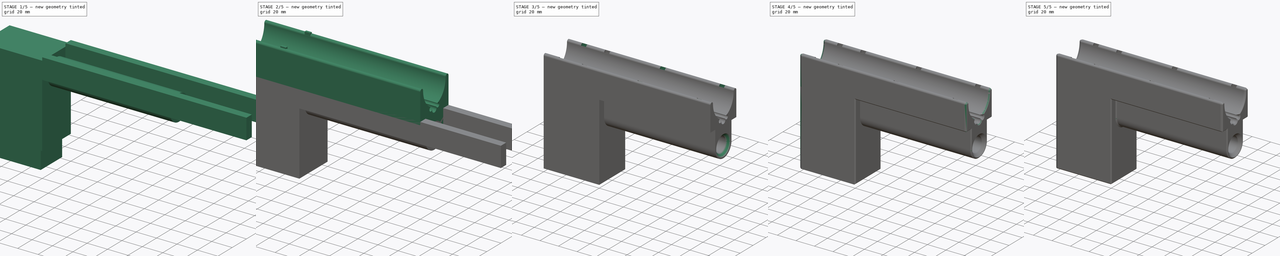
[diagram: build sequence overview — one tinted view per stage of 5, left to right]
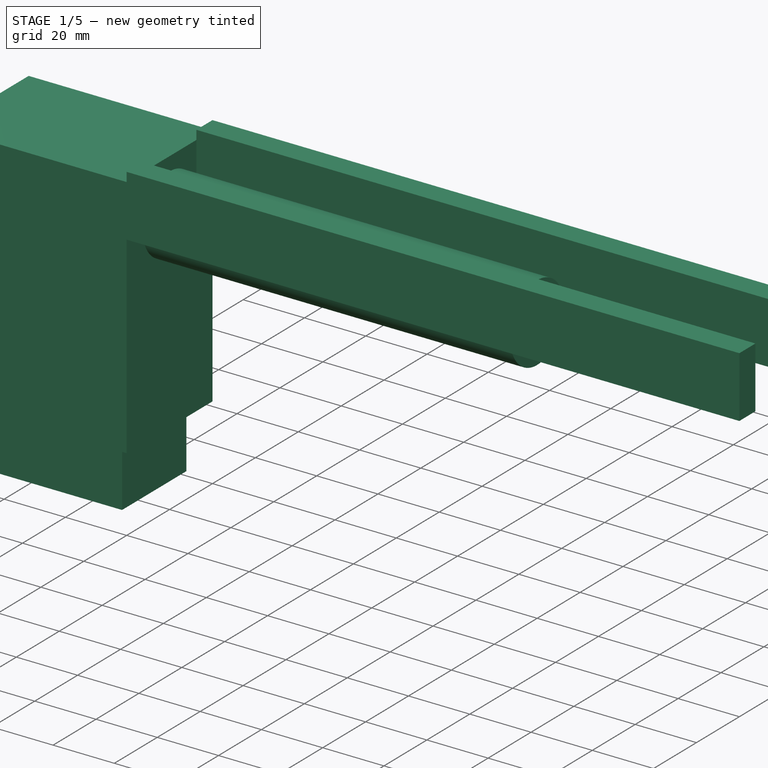
[diagram: stage 1 of 5 — iso view after this stage's code; geometry added in this stage tinted green]
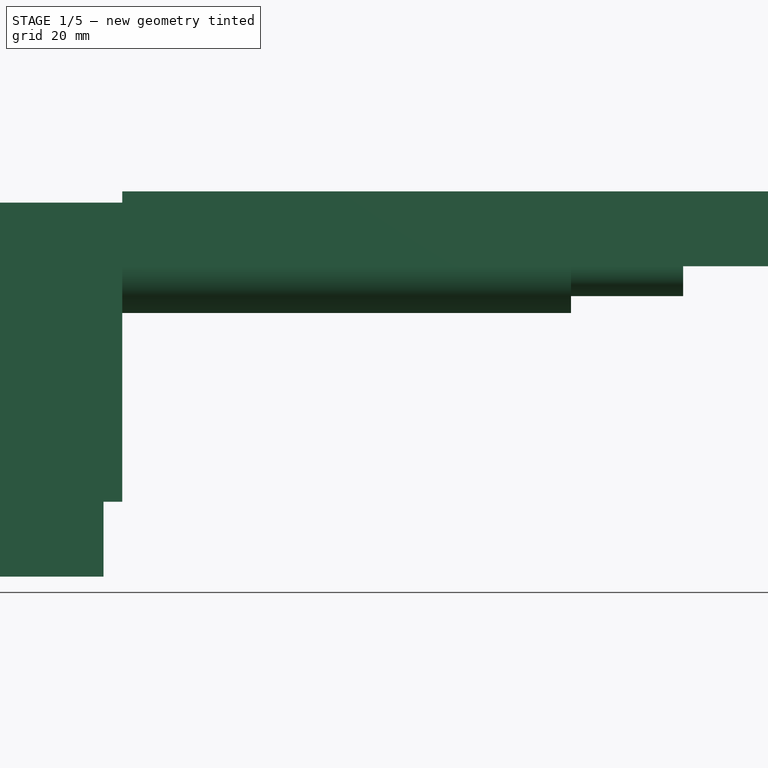
[diagram: stage 1 of 5 — front view after this stage's code; geometry added in this stage tinted green]
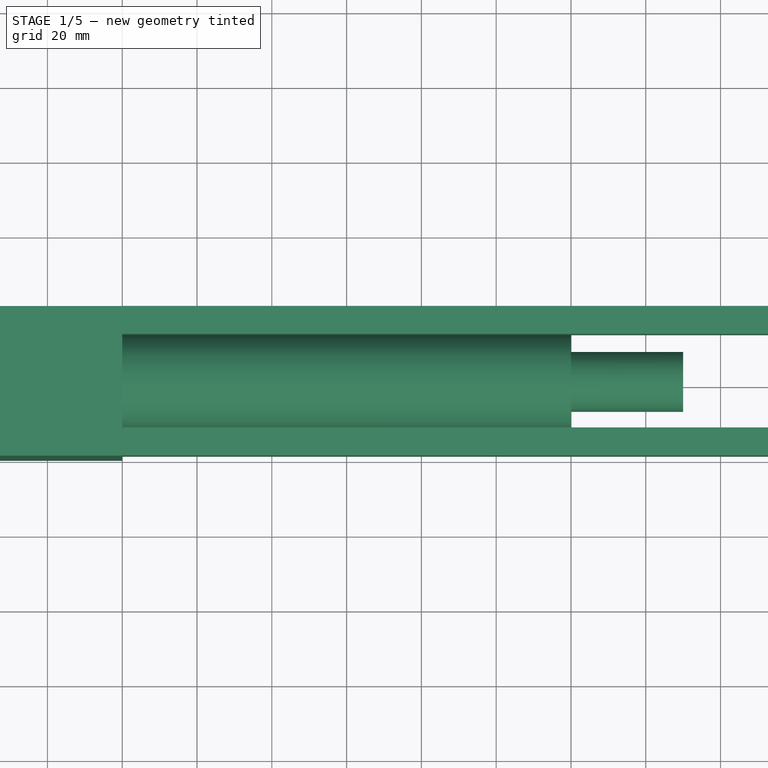
[diagram: stage 1 of 5 — top view after this stage's code; geometry added in this stage tinted green]
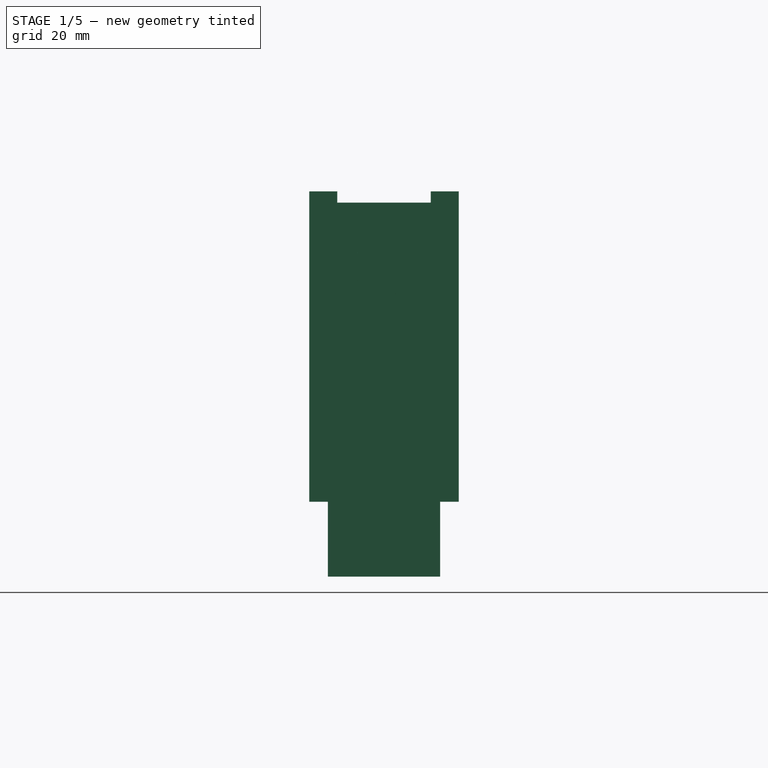
[diagram: stage 1 of 5 — right view after this stage's code; geometry added in this stage tinted green]
FCSTD DOCUMENT  (FreeCAD 0.18R16093 (Git))
Label: 20190511_bikelockholder_B9
License: All rights reserved
LicenseURL: http://en.wikipedia.org/wiki/All_rights_reserved
objects: PartDesign::Chamfer×14, Part::Extrusion×7, Sketcher::SketchObject×4, Part::Cut×3, Part::Box×3, Part::MultiFuse×3, Part::Cylinder×2, PartDesign::Body×2, Spreadsheet::Sheet×1, PartDesign::FeatureBase×1
note: 39 computed .brp shape members not serialized (recipe doc carries the construction recipe); baked Part::Feature solids carry a one-line shape summary decoded from their .brp

FEATURE [Part::Box] Box  label="Cube"
  AttacherType = Attacher::AttachEngine3D
  Height = 80
  Length = 60
  Placement = pos=(0,-20,-80) rot=(0,0,1;0rad)
  Width = 40
  expr: Placement.Base.z = -params.sh2
  expr: Width = params.bpw
  expr: Placement.Base.y = -params.bpw / 2
  expr: Height = params.sh2
  expr: Placement.Base.x = 0
FEATURE [Part::Cylinder] Cylinder
  Angle = 360
  AttacherType = Attacher::AttachEngine3D
  Height = 180
  Placement = pos=(0,0,-17) rot=(0,1,0;1.5708rad)
  Radius = 12.5
  expr: Radius = 25 / 2
FEATURE [Part::Extrusion] Extrude006
  Base = -> Sketch003
  Dir = (0,-1,-2e-16)
  DirMode = 2
  FaceMakerClass = Part::FaceMakerBullseye
  LengthFwd = 30
  LengthRev = 0
  Solid = true
  Symmetric = true
FEATURE [Part::Cylinder] Cylinder001
  Angle = 360
  AttacherType = Attacher::AttachEngine3D
  Height = 200
  Placement = pos=(10,0,-17) rot=(0,1,0;1.5708rad)
  Radius = 8
FEATURE [Part::MultiFuse] Fusion002
  Shapes = -> [Extrude006,Cylinder001]
FEATURE [Part::Box] Box001  label="Cube001"
  AttacherType = Attacher::AttachEngine3D
  Height = 20
  Length = 200
  Placement = pos=(60,12.5,-17) rot=(0,0,1;0rad)
  Width = 7.5
  expr: Width = (40 - 25) / 2
FEATURE [Part::Box] Box002  label="Cube002"
  AttacherType = Attacher::AttachEngine3D
  Height = 20
  Length = 200
  Placement = pos=(60,-20,-17) rot=(0,0,1;0rad)
  Width = 7.5
  expr: Width = (40 - 25) / 2
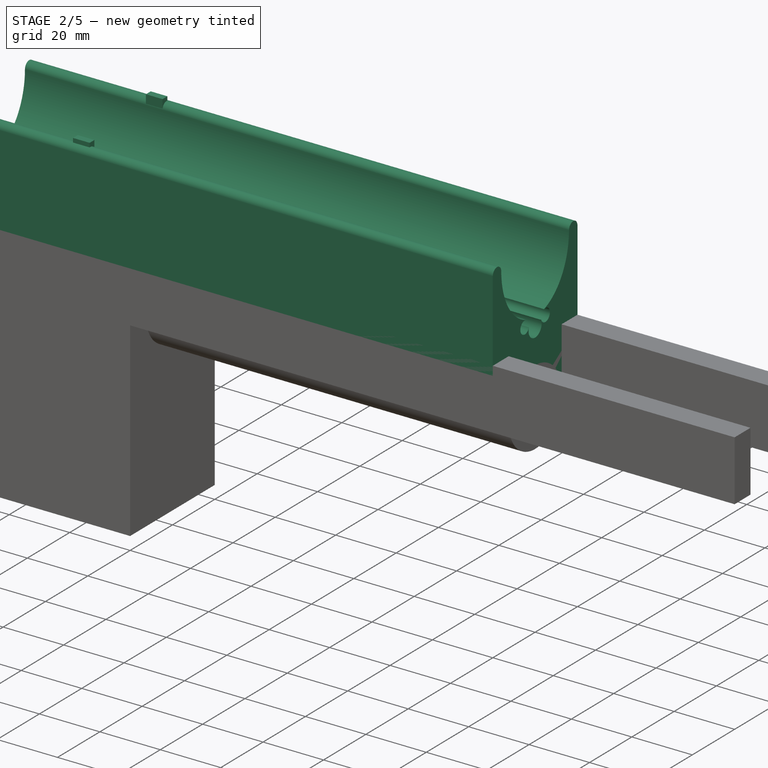
[diagram: stage 2 of 5 — iso view after this stage's code; geometry added in this stage tinted green]
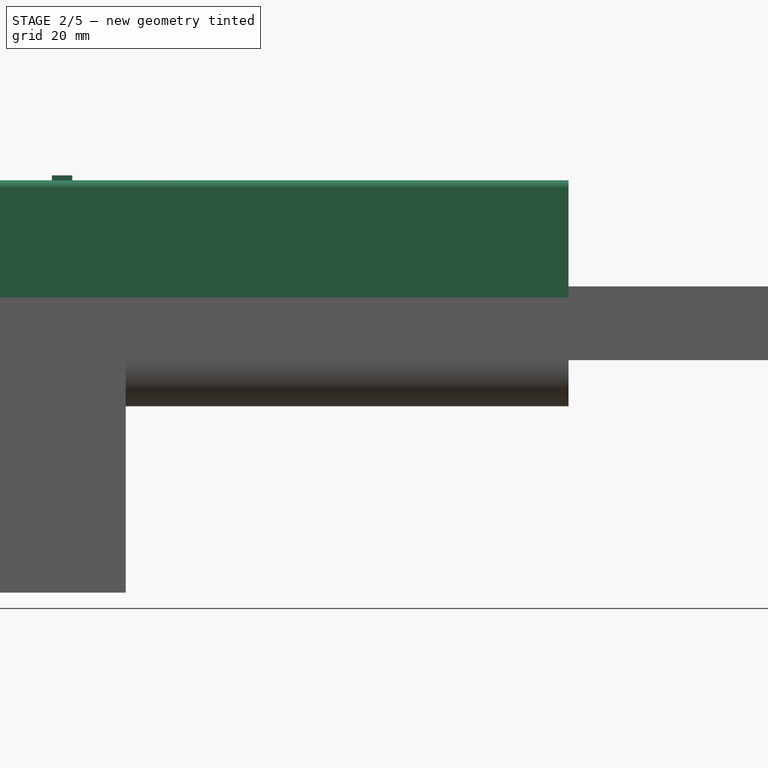
[diagram: stage 2 of 5 — front view after this stage's code; geometry added in this stage tinted green]
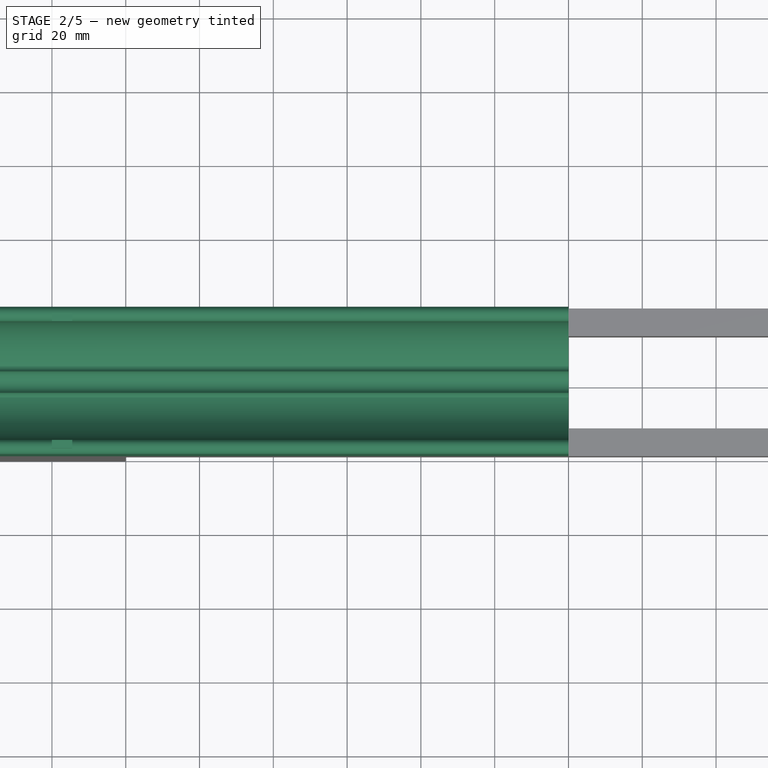
[diagram: stage 2 of 5 — top view after this stage's code; geometry added in this stage tinted green]
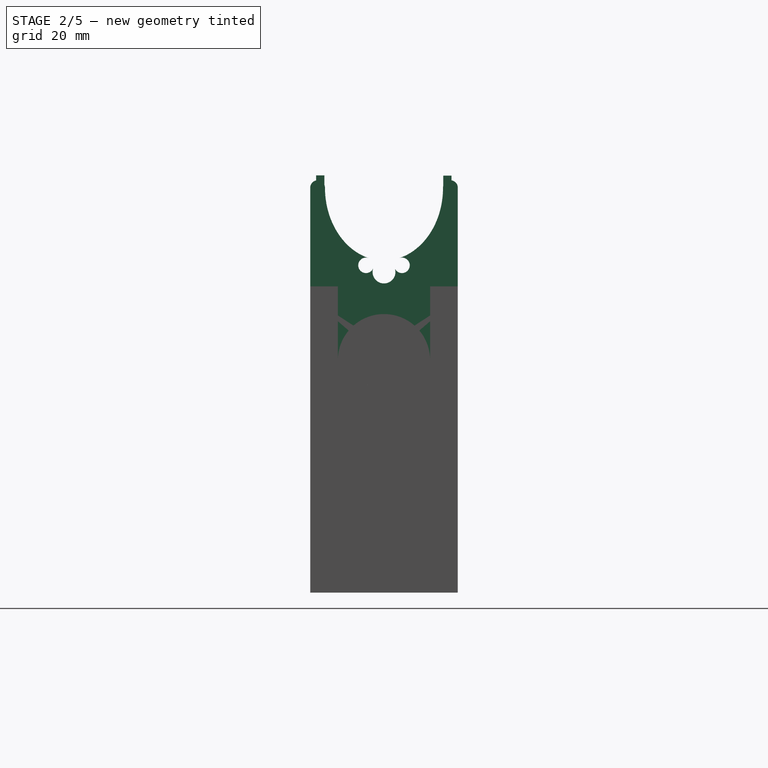
[diagram: stage 2 of 5 — right view after this stage's code; geometry added in this stage tinted green]
FEATURE [Sketcher::SketchObject] Sketch  label="BPprofile"
  MapMode = 5
  Placement = pos=(0,0,0) rot=(0.57735,0.57735,0.57735;2.0944rad)
  Support = -> [YZ_Plane]
  expr: Constraints[22] = params.bph
  expr: Constraints[21] = params.bpw
  expr: Constraints[5] = params.sh
  expr: Constraints[16] = params.hhd
  expr: Constraints[17] = params.hvd
  sketch-geometry (13):
    g0: LineSegment StartX=-20 StartY=0 StartZ=0 EndX=-20 EndY=-17 EndZ=0
    g1: LineSegment StartX=-20 StartY=-17 StartZ=0 EndX=20 EndY=-17 EndZ=0
    g2: LineSegment StartX=20 StartY=-17 StartZ=0 EndX=20 EndY=0 EndZ=0
    g3: ArcOfEllipse CenterX=0 CenterY=29.75 CenterZ=0 NormalX=0 NormalY=0 NormalZ=1 MajorRadius=19.75 MinorRadius=16 AngleXU=-1.5708 StartAngle=4.71239 EndAngle=7.85398
    g4: LineSegment [constr] StartX=0 StartY=10 StartZ=0 EndX=0 EndY=49.5 EndZ=0
    g5: LineSegment [constr] StartX=16 StartY=29.75 StartZ=0 EndX=-16 EndY=29.75 EndZ=0
    g6: GeomPoint X=1.3e-15 Y=18.1715 Z=0
    g7: GeomPoint X=0 Y=41.3285 Z=0
    g8: LineSegment [constr] StartX=-16 StartY=29.75 StartZ=0 EndX=16 EndY=29.75 EndZ=0
    g9: ArcOfCircle CenterX=-18 CenterY=29.75 CenterZ=0 NormalX=0 NormalY=0 NormalZ=1 AngleXU=0 Radius=2 StartAngle=0 EndAngle=3.14159
    g10: ArcOfCircle CenterX=18 CenterY=29.75 CenterZ=0 NormalX=0 NormalY=0 NormalZ=1 AngleXU=0 Radius=2 StartAngle=0 EndAngle=3.14159
    g11: LineSegment StartX=-20 StartY=29.75 StartZ=0 EndX=-20 EndY=0 EndZ=0
    g12: LineSegment StartX=20 StartY=0 StartZ=0 EndX=20 EndY=29.75 EndZ=0
  constraints (32):
    c: Vertical(g0)
    c: Coincident(g0,g1)
    c: Horizontal(g1)
    c: Coincident(g1,g2)
    c: Vertical(g2)
    c: Distance(g2) = 17
    c: InternalAlignment(g4-g7 -> g3) x4
    c: PointOnObject(g3,g-2)
    c: Vertical(g4)
    c: Coincident(g8,g3)
    c: Coincident(g8,g3)
    c: Horizontal(g8)
    c: Coincident(g3,g5)
    c: Distance(g5) = 32
    c: Distance(g4) = 39.5
    c: Tangent(g3,g3)
    c: PointOnObject(g2,g-1)
    c: Symmetric(g2,g0,g-2)
    c: Distance(g1) = 40
    c: DistanceY(g-1,g4) = 10
    c: Coincident(g9,g3)
    c: Coincident(g10,g3)
    c: Coincident(g11,g9)
    c: Coincident(g11,g0)
    c: Vertical(g11)
    c: Coincident(g12,g2)
    c: Coincident(g12,g10)
    c: Vertical(g12)
    c: Horizontal(g9,g9)
    c: Horizontal(g9,g3)
    c: Horizontal(g3,g10)
    c: Horizontal(g10,g10)
FEATURE [Spreadsheet::Sheet] Spreadsheet  label="params"
  cells = C3=HolmHorizontalDiameter; D3(hhd)=32; E3=mm; C4=HolmVerticalDiameter; D4(hvd)=39.5; E4=mm; C5=BasePlateWidth; D5(bpw)=40; E5=mm; C6=BasePlateHeight; D6(bph)=10; E6=mm; C7=ShaftHeight; D7(sh)=17; E7=mm; C8=ShaftHeight2; D8(sh2)=80; E8=mm; C9=DiameterLargeCable; D9(dlc)=6.2; E9=mm; C10=DiamterSmallCable; D10(dsc)=4.2; E10=mm
FEATURE [Sketcher::SketchObject] Sketch001  label="BPCableCutout"
  MapMode = 5
  Placement = pos=(0,0,0) rot=(0.57735,0.57735,0.57735;2.0944rad)
  Support = -> [YZ_Plane]
  expr: Constraints[17] = params.dlc / 2
  expr: Constraints[13] = params.dlc / 2 + params.dsc / 2
  expr: Constraints[12] = params.dlc / 2 + params.dsc / 2
  expr: Constraints[11] = params.dsc / 2
  expr: Constraints[10] = params.dlc / 2
  expr: Constraints[9] = params.dsc / 2
  expr: Constraints[8] = params.hvd / 2 + params.bph
  expr: Constraints[5] = params.hvd
  expr: Constraints[4] = params.hhd
  sketch-geometry (11):
    g0: Ellipse [constr] CenterX=0 CenterY=29.75 CenterZ=0 NormalX=0 NormalY=0 NormalZ=1 MajorRadius=19.75 MinorRadius=16 AngleXU=-1.5708
    g1: LineSegment [constr] StartX=0 StartY=10 StartZ=0 EndX=0 EndY=49.5 EndZ=0
    g2: LineSegment [constr] StartX=16 StartY=29.75 StartZ=0 EndX=-16 EndY=29.75 EndZ=0
    g3: GeomPoint X=0 Y=18.1715 Z=0
    g4: GeomPoint X=0 Y=41.3285 Z=0
    g5: ArcOfCircle CenterX=0 CenterY=6.9 CenterZ=0 NormalX=0 NormalY=0 NormalZ=1 AngleXU=0 Radius=3.1 StartAngle=2.78718 EndAngle=6.6376
    g6: ArcOfCircle CenterX=-4.87681 CenterY=8.70463 CenterZ=0 NormalX=0 NormalY=0 NormalZ=1 AngleXU=0 Radius=2.1 StartAngle=1.24627 EndAngle=5.92877
    g7: ArcOfCircle CenterX=4.87681 CenterY=8.70463 CenterZ=0 NormalX=0 NormalY=0 NormalZ=1 AngleXU=0 Radius=2.1 StartAngle=3.49602 EndAngle=8.17851
    g8: GeomPoint X=4.20721 Y=10.695 Z=0
    g9: GeomPoint X=-4.20721 Y=10.695 Z=0
    g10: LineSegment StartX=-4.20721 StartY=10.695 StartZ=0 EndX=4.20721 EndY=10.695 EndZ=0
  constraints (25):
    c: InternalAlignment(g1-g4 -> g0) x4
    c: Distance(g2) = 32
    c: Distance(g1) = 39.5
    c: PointOnObject(g0,g-2)
    c: Vertical(g1)
    c: DistanceY(g-1,g0) = 29.75
    c: Radius(g7) = 2.1
    c: Radius(g5) = 3.1
    c: Radius(g6) = 2.1
    c: Distance(g7,g5) = 5.2
    c: Distance(g6,g5) = 5.2
    c: Coincident(g6,g5)
    c: Coincident(g5,g7)
    c: PointOnObject(g5,g-2)
    c: DistanceY(g5,g1) = 3.1
    c: PointOnObject(g6,g0)
    c: PointOnObject(g7,g0)
    c: PointOnObject(g8,g0)
    c: PointOnObject(g8,g7)
    c: Tangent(g0,g7,g8) = 1.5708
    c: PointOnObject(g9,g0)
    c: PointOnObject(g9,g6)
    c: Tangent(g0,g6,g9) = 1.5708
    c: Coincident(g10,g6)
    c: Coincident(g10,g7)
FEATURE [Part::Extrusion] Extrude
  Base = -> Sketch
  Dir = (1,-2e-16,3e-16)
  DirMode = 2
  FaceMakerClass = Part::FaceMakerBullseye
  LengthFwd = 180
  LengthRev = 0
  Solid = true
  Symmetric = false
FEATURE [Part::Extrusion] Extrude001
  Base = -> Sketch001
  Dir = (1,-2e-16,3e-16)
  DirMode = 2
  FaceMakerClass = Part::FaceMakerBullseye
  LengthFwd = 180
  LengthRev = 0
  Solid = true
  Symmetric = false
FEATURE [Part::Cut] Cut
  Base = -> Extrude
  Tool = -> Extrude001
FEATURE [Part::Extrusion] Extrude005  label="straphole004"
  Base = -> Sketch002
  Dir = (1,-2e-16,3e-16)
  DirMode = 2
  FaceMakerClass = Part::FaceMakerBullseye
  LengthFwd = 5.5
  LengthRev = 0
  Placement = pos=(40,0,0) rot=(0,0,1;0rad)
  Solid = true
  Symmetric = false
FEATURE [Sketcher::SketchObject] Sketch003
  MapMode = 5
  Placement = pos=(0,0,0) rot=(1,0,0;1.5708rad)
  Support = -> [XZ_Plane]
  sketch-geometry (7):
    g0: LineSegment StartX=5 StartY=0 StartZ=0 EndX=50 EndY=0 EndZ=0
    g1: LineSegment StartX=50 StartY=0 StartZ=0 EndX=55 EndY=-40 EndZ=0
    g2: LineSegment [constr] StartX=55 StartY=-40 StartZ=0 EndX=5 EndY=-40 EndZ=0
    g3: LineSegment StartX=5 StartY=-40 StartZ=0 EndX=5 EndY=0 EndZ=0
    g4: LineSegment StartX=5 StartY=-40 StartZ=0 EndX=5 EndY=-100 EndZ=0
    g5: LineSegment StartX=5 StartY=-100 StartZ=0 EndX=55 EndY=-100 EndZ=0
    g6: LineSegment StartX=55 StartY=-100 StartZ=0 EndX=55 EndY=-40 EndZ=0
  constraints (20):
    c: Coincident(g0,g1)
    c: Coincident(g1,g2)
    c: Coincident(g2,g3)
    c: Coincident(g3,g0)
    c: Horizontal(g0)
    c: Horizontal(g2)
    c: Vertical(g3)
    c: PointOnObject(g0,g-1)
    c: DistanceX(g0,g0) = 45
    c: DistanceX(g2,g2) = 50
    c: DistanceY(g3,g3) = 40
    c: DistanceX(g-1,g2) = 5
    c: Coincident(g3,g4)
    c: Vertical(g4)
    c: Coincident(g4,g5)
    c: Horizontal(g5)
    c: Coincident(g5,g6)
    c: Vertical(g6)
    c: Coincident(g6,g1)
    c: DistanceY(g4,g4) = 60
FEATURE [PartDesign::Body] Body
  Group = -> [Sketch,Sketch001,Sketch002,Sketch003]
  Origin = -> Origin
FEATURE [Part::MultiFuse] Fusion001  label="MainBody"
  Shapes = -> [Box,Cylinder,Cut]
FEATURE [Part::Cut] Cut001
  Base = -> Fusion001
  Tool = -> Fusion002
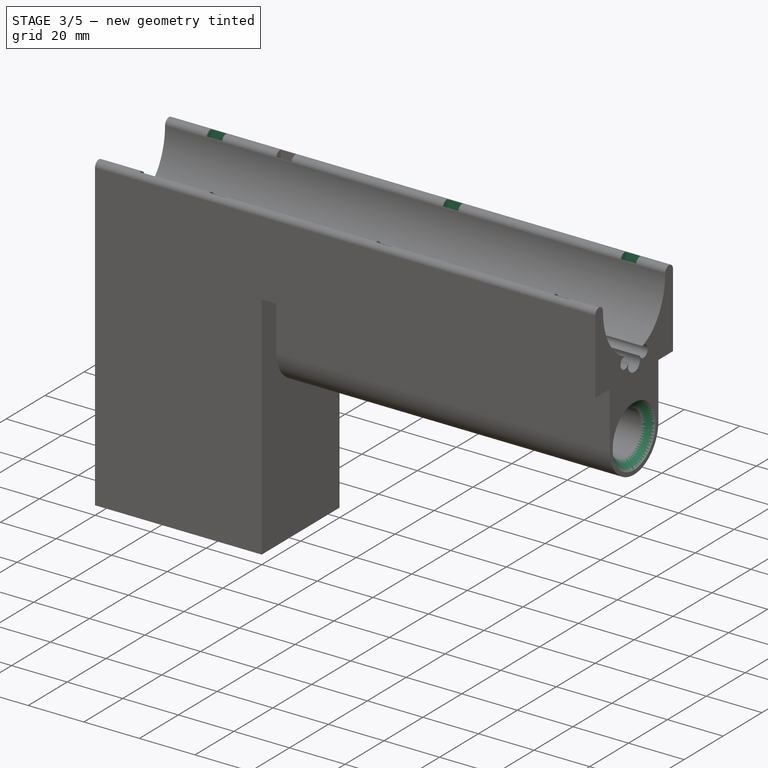
[diagram: stage 3 of 5 — iso view after this stage's code; geometry added in this stage tinted green]
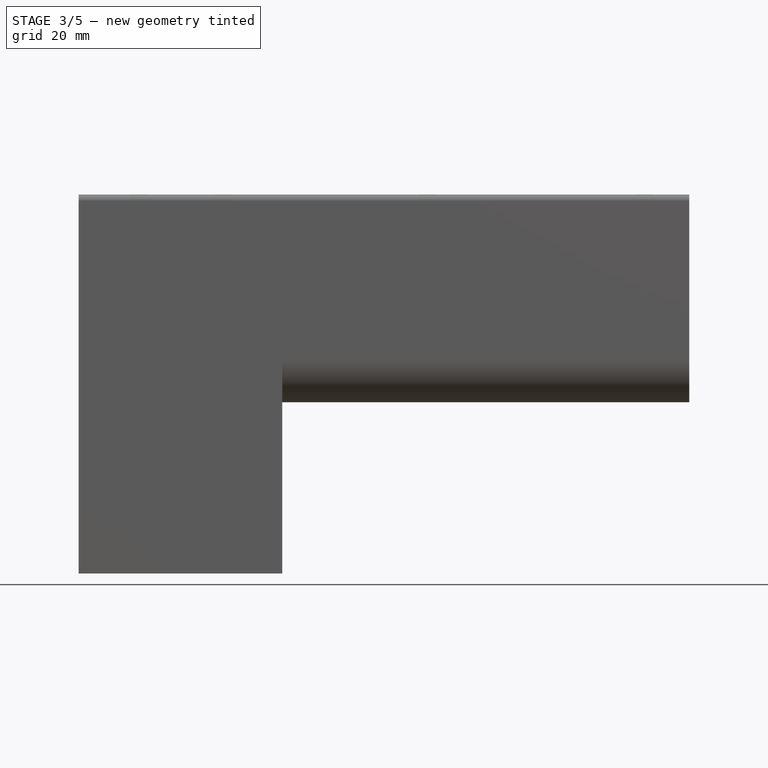
[diagram: stage 3 of 5 — front view after this stage's code; geometry added in this stage tinted green]
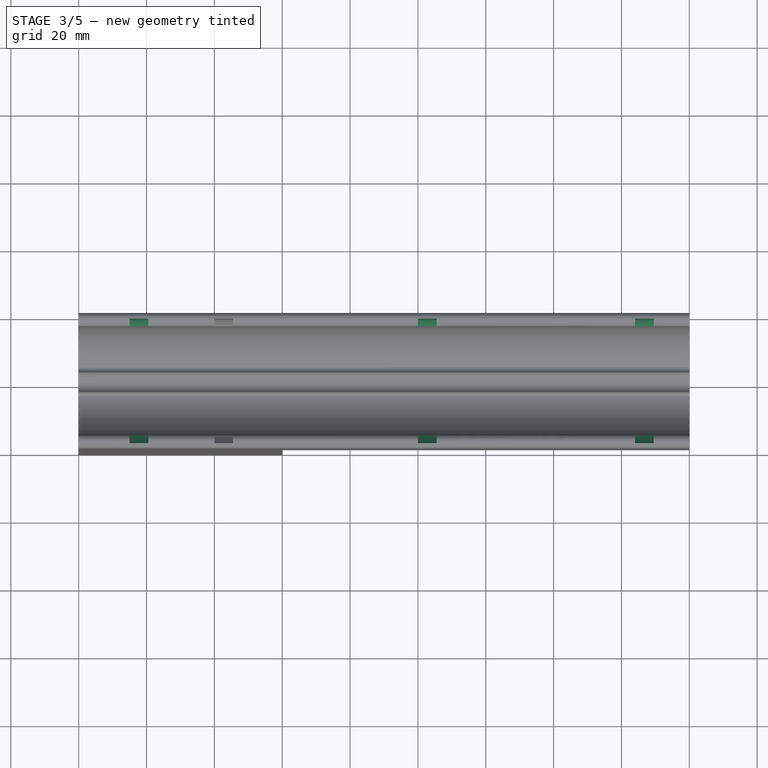
[diagram: stage 3 of 5 — top view after this stage's code; geometry added in this stage tinted green]
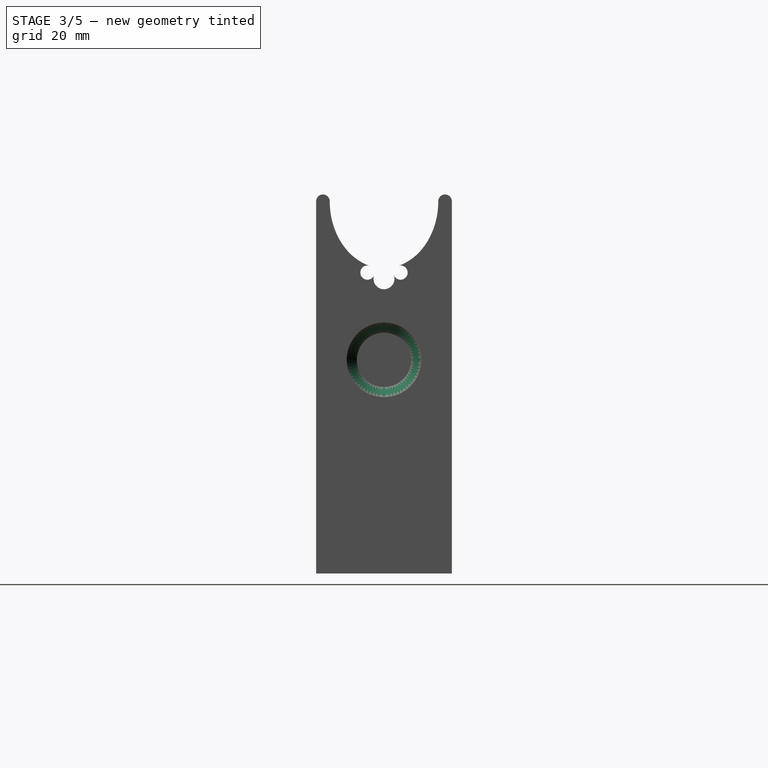
[diagram: stage 3 of 5 — right view after this stage's code; geometry added in this stage tinted green]
FEATURE [Sketcher::SketchObject] Sketch002  label="BPStraps"
  MapMode = 5
  Placement = pos=(0,0,0) rot=(0.57735,0.57735,0.57735;2.0944rad)
  Support = -> [YZ_Plane]
  sketch-geometry (16):
    g0: LineSegment StartX=-16.1473 StartY=33.0867 StartZ=0 EndX=-16.1473 EndY=13 EndZ=0
    g1: LineSegment StartX=16.0429 StartY=33.0034 StartZ=0 EndX=16.0429 EndY=12.9168 EndZ=0
    g2: ArcOfEllipse CenterX=-0.032258 CenterY=24.029 CenterZ=0 NormalX=0 NormalY=0 NormalZ=1 MajorRadius=21.0291 MinorRadius=18.9308 AngleXU=1.57233 StartAngle=2.1215 EndAngle=4.15426
    g3: LineSegment [constr] StartX=-0.0645159 StartY=45.0581 StartZ=0 EndX=0 EndY=3 EndZ=0
    g4: LineSegment [constr] StartX=-18.963 StartY=24 StartZ=0 EndX=18.8985 EndY=24.0581 EndZ=0
    g5: GeomPoint X=-0.0463041 Y=33.1858 Z=0
    g6: GeomPoint X=-0.0182118 Y=14.8723 Z=0
    g7: ArcOfEllipse CenterX=-0.0474189 CenterY=16.9324 CenterZ=0 NormalX=0 NormalY=0 NormalZ=1 MajorRadius=18.9308 MinorRadius=15.9325 AngleXU=-3.13862 StartAngle=0.245858 EndAngle=2.88866
    g8: LineSegment [constr] StartX=-18.9781 StartY=16.8761 StartZ=0 EndX=18.8833 EndY=16.9888 EndZ=0
    g9: LineSegment [constr] StartX=0 StartY=1 StartZ=0 EndX=-0.0948377 EndY=32.8648 EndZ=0
    g10: GeomPoint X=-10.2714 Y=16.902 Z=0
    g11: GeomPoint X=10.1766 Y=16.9629 Z=0
    g12: LineSegment StartX=-18.3973 StartY=13 StartZ=0 EndX=-18.3973 EndY=33.0867 EndZ=0
    g13: LineSegment StartX=-18.3973 StartY=33.0867 StartZ=0 EndX=-16.1473 EndY=33.0867 EndZ=0
    g14: LineSegment StartX=18.2929 StartY=13 StartZ=0 EndX=18.2929 EndY=33.0034 EndZ=0
    g15: LineSegment StartX=18.2929 StartY=33.0034 StartZ=0 EndX=16.0429 EndY=33.0034 EndZ=0
  constraints (28):
    c: Vertical(g0)
    c: Equal(g0,g1)
    c: Vertical(g1)
    c: InternalAlignment(g3-g6 -> g2) x4
    c: Coincident(g2,g1)
    c: Coincident(g2,g0)
    c: PointOnObject(g3,g-2)
    c: DistanceY(g-1,g3) = 3
    c: DistanceY(g-1,g0) = 13
    c: DistanceY(g-1,g4) = 24
    c: InternalAlignment(g8-g11 -> g7) x4
    c: PointOnObject(g9,g-2)
    c: DistanceY(g-1,g9) = 1
    c: DistanceY(g-1,g7) = 13
    c: DistanceY(g-1,g7) = 13
    c: Equal(g4,g8)
    c: Coincident(g12,g7)
    c: Vertical(g12)
    c: Coincident(g12,g13)
    c: Coincident(g13,g0)
    c: Horizontal(g13)
    c: Coincident(g14,g7)
    c: Vertical(g14)
    c: Coincident(g14,g15)
    c: Coincident(g15,g1)
    c: Horizontal(g15)
    c: Distance(g13) = 2.25
    c: Distance(g15) = 2.25
FEATURE [Part::Extrusion] Extrude002  label="straphole001"
  Base = -> Sketch002
  Dir = (1,-2e-16,3e-16)
  DirMode = 2
  FaceMakerClass = Part::FaceMakerBullseye
  LengthFwd = 5.5
  LengthRev = 0
  Placement = pos=(15,0,0) rot=(0,0,1;0rad)
  Solid = true
  Symmetric = false
FEATURE [Part::Extrusion] Extrude003  label="straphole002"
  Base = -> Sketch002
  Dir = (1,-2e-16,3e-16)
  DirMode = 2
  FaceMakerClass = Part::FaceMakerBullseye
  LengthFwd = 5.5
  LengthRev = 0
  Placement = pos=(100,0,0) rot=(0,0,1;0rad)
  Solid = true
  Symmetric = false
FEATURE [Part::Extrusion] Extrude004  label="straphole003"
  Base = -> Sketch002
  Dir = (1,-2e-16,3e-16)
  DirMode = 2
  FaceMakerClass = Part::FaceMakerBullseye
  LengthFwd = 5.5
  LengthRev = 0
  Placement = pos=(164,0,0) rot=(0,0,1;0rad)
  Solid = true
  Symmetric = false
FEATURE [Part::MultiFuse] Fusion  label="strapholes"
  Shapes = -> [Extrude002,Extrude003,Extrude004,Extrude005,Box001,Box002]
FEATURE [Part::Cut] Cut002
  Base = -> Cut001
  Tool = -> Fusion
FEATURE [PartDesign::FeatureBase] BaseFeature
  BaseFeature = -> Cut002
FEATURE [PartDesign::Chamfer] Chamfer
  Base = -> BaseFeature [Edge194]
  BaseFeature = -> BaseFeature
  Size = 3
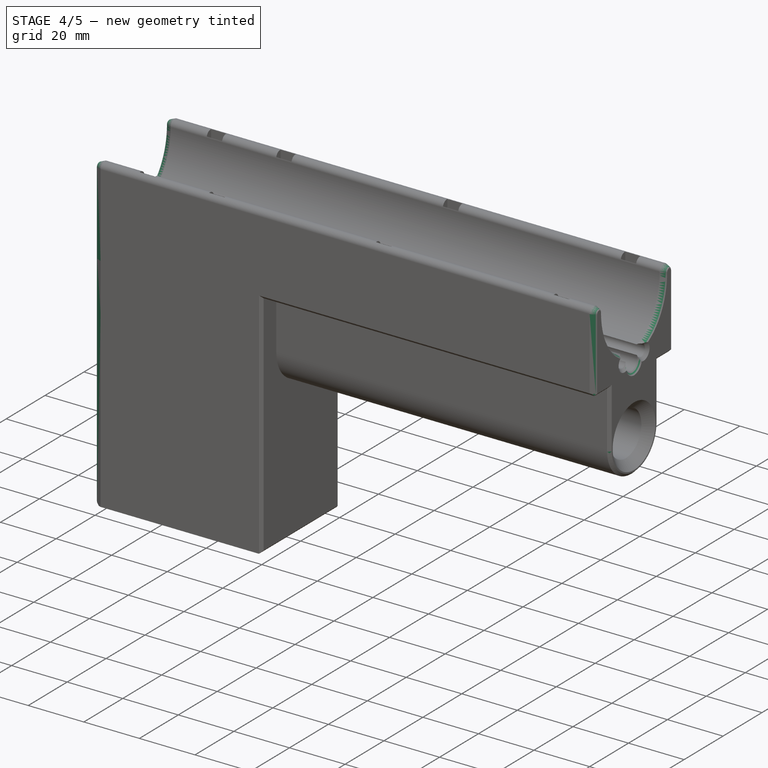
[diagram: stage 4 of 5 — iso view after this stage's code; geometry added in this stage tinted green]
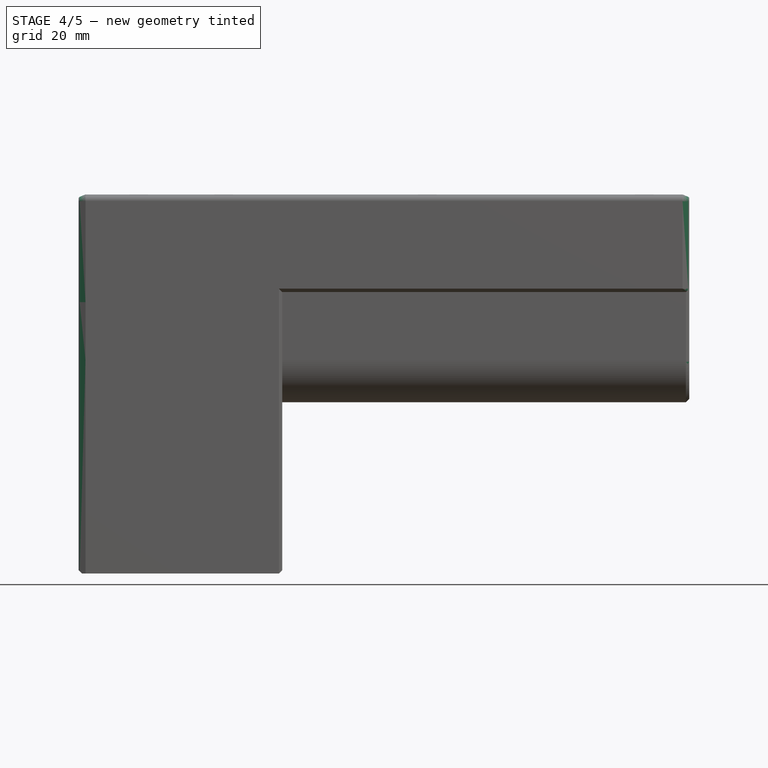
[diagram: stage 4 of 5 — front view after this stage's code; geometry added in this stage tinted green]
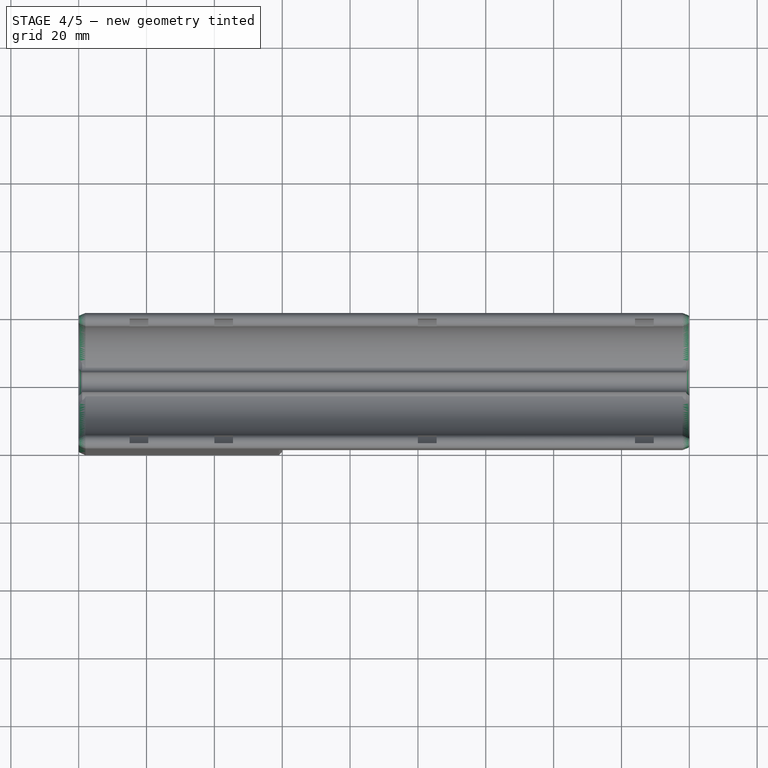
[diagram: stage 4 of 5 — top view after this stage's code; geometry added in this stage tinted green]
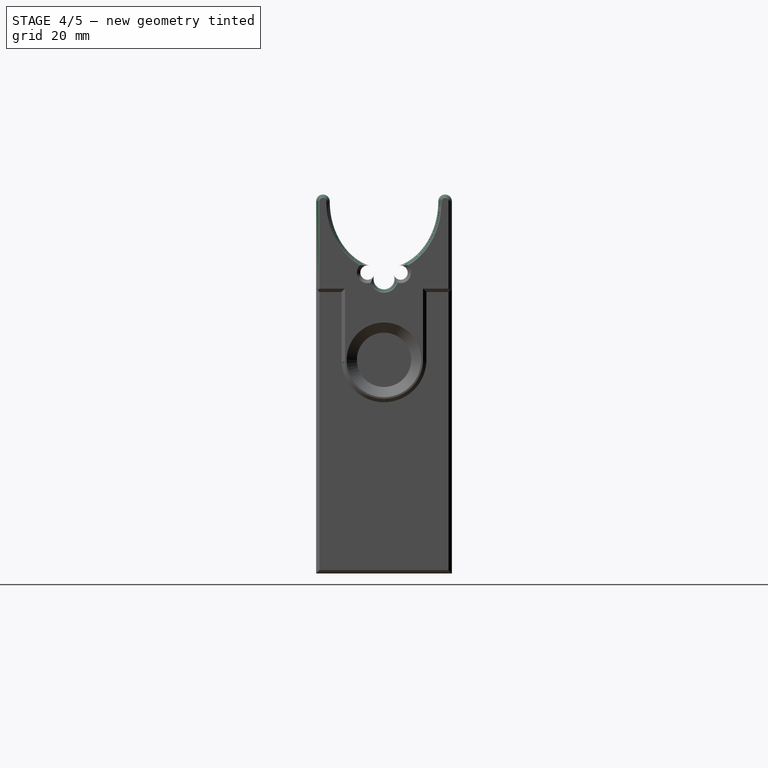
[diagram: stage 4 of 5 — right view after this stage's code; geometry added in this stage tinted green]
FEATURE [PartDesign::Chamfer] Chamfer001
  Base = -> Chamfer [Edge117,Edge114,Edge115,Edge116]
  BaseFeature = -> Chamfer
  Size = 2
FEATURE [PartDesign::Chamfer] Chamfer002
  Base = -> Chamfer001 [Face42]
  BaseFeature = -> Chamfer001
  Size = 1
FEATURE [PartDesign::Chamfer] Chamfer003
  Base = -> Chamfer002 [Face41,Face37,Face24]
  BaseFeature = -> Chamfer002
  Size = 1
FEATURE [PartDesign::Chamfer] Chamfer004
  Base = -> Chamfer003 [Face32]
  BaseFeature = -> Chamfer003
  Size = 1
FEATURE [PartDesign::Chamfer] Chamfer005
  Base = -> Chamfer004 [Face25]
  BaseFeature = -> Chamfer004
  Size = 1
FEATURE [PartDesign::Chamfer] Chamfer006
  Base = -> Chamfer005 [Edge1]
  BaseFeature = -> Chamfer005
  Size = 1
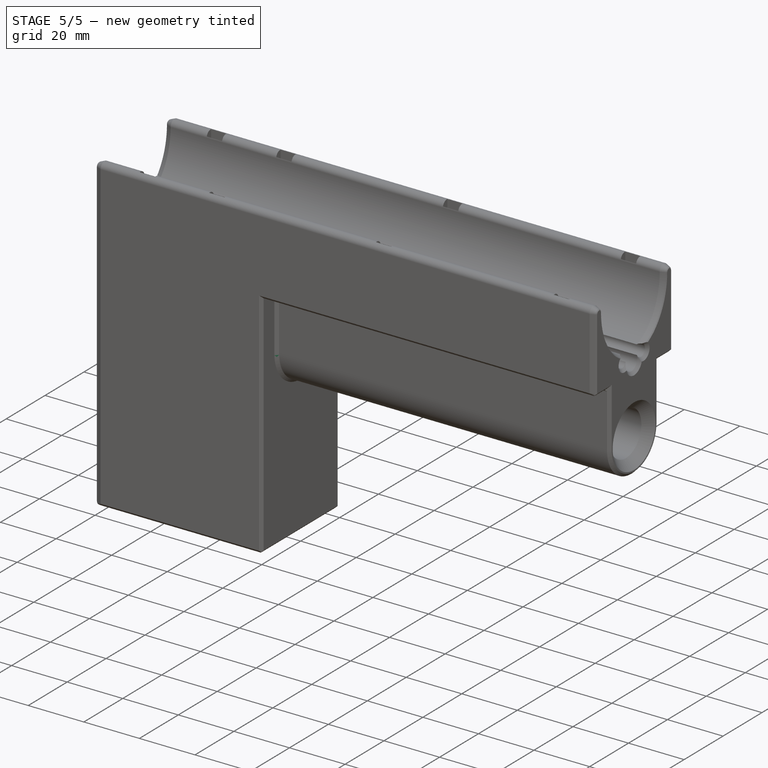
[diagram: stage 5 of 5 — iso view after this stage's code; geometry added in this stage tinted green]
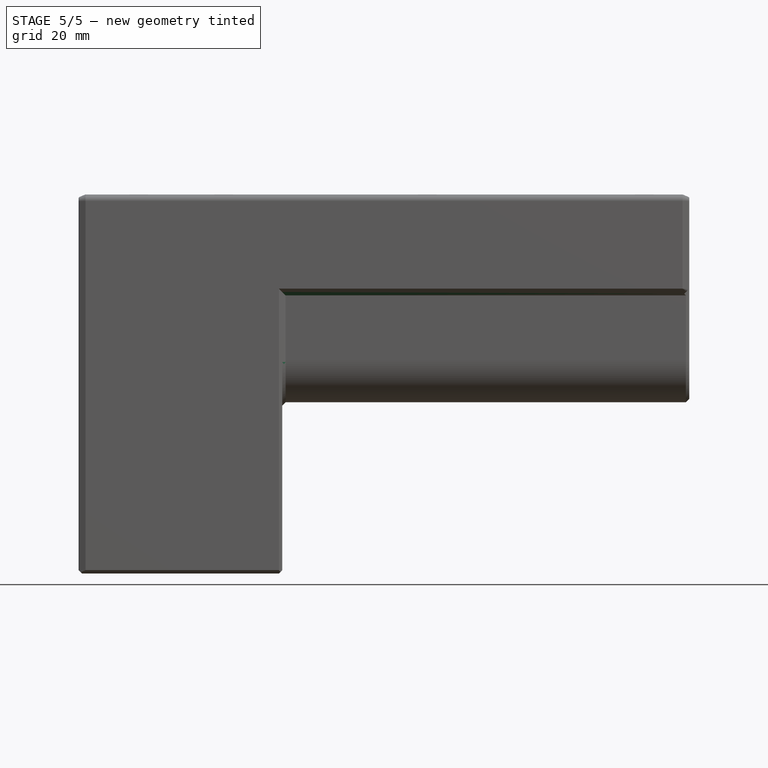
[diagram: stage 5 of 5 — front view after this stage's code; geometry added in this stage tinted green]
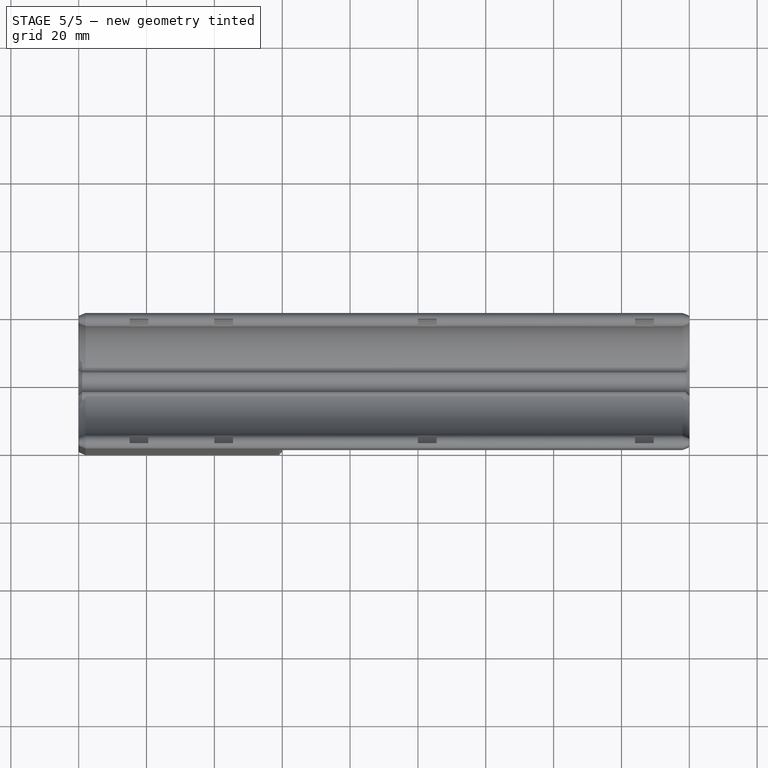
[diagram: stage 5 of 5 — top view after this stage's code; geometry added in this stage tinted green]
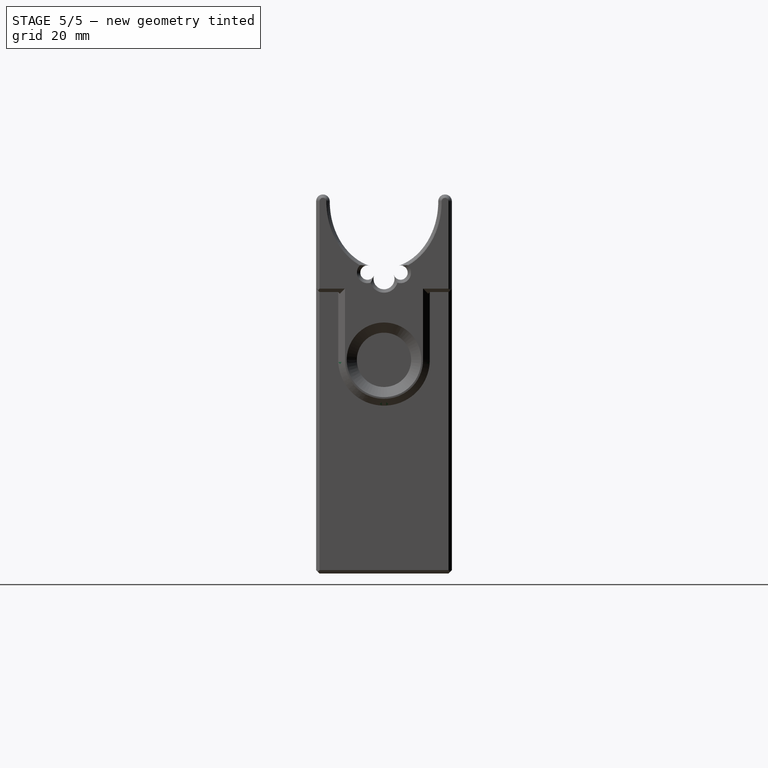
[diagram: stage 5 of 5 — right view after this stage's code; geometry added in this stage tinted green]
FEATURE [PartDesign::Chamfer] Chamfer007
  Base = -> Chamfer006 [Edge43]
  BaseFeature = -> Chamfer006
  Size = 1
FEATURE [PartDesign::Chamfer] Chamfer008
  Base = -> Chamfer007 [Edge123]
  BaseFeature = -> Chamfer007
  Size = 1
FEATURE [PartDesign::Chamfer] Chamfer009
  Base = -> Chamfer008 [Edge26]
  BaseFeature = -> Chamfer008
  Size = 1
FEATURE [PartDesign::Chamfer] Chamfer010
  Base = -> Chamfer009 [Edge75]
  BaseFeature = -> Chamfer009
  Size = 1
FEATURE [PartDesign::Chamfer] Chamfer011
  Base = -> Chamfer010 [Edge7]
  BaseFeature = -> Chamfer010
  Size = 1
FEATURE [PartDesign::Chamfer] Chamfer012
  Base = -> Chamfer011 [Face48]
  BaseFeature = -> Chamfer011
  Size = 1
FEATURE [PartDesign::Chamfer] Chamfer013
  Base = -> Chamfer012 [Edge4,Edge6,Edge25,Edge18,Edge3,Edge15]
  BaseFeature = -> Chamfer012
  Size = 1
FEATURE [PartDesign::Body] Body001
  BaseFeature = -> Cut002
  Group = -> [BaseFeature,Chamfer,Chamfer001,Chamfer002,Chamfer003,Chamfer004,Chamfer005,Chamfer006,Chamfer007,Chamfer008,Chamfer009,Chamfer010,Chamfer011,Chamfer012,Chamfer013]
  Origin = -> Origin001
  Tip = -> Chamfer013
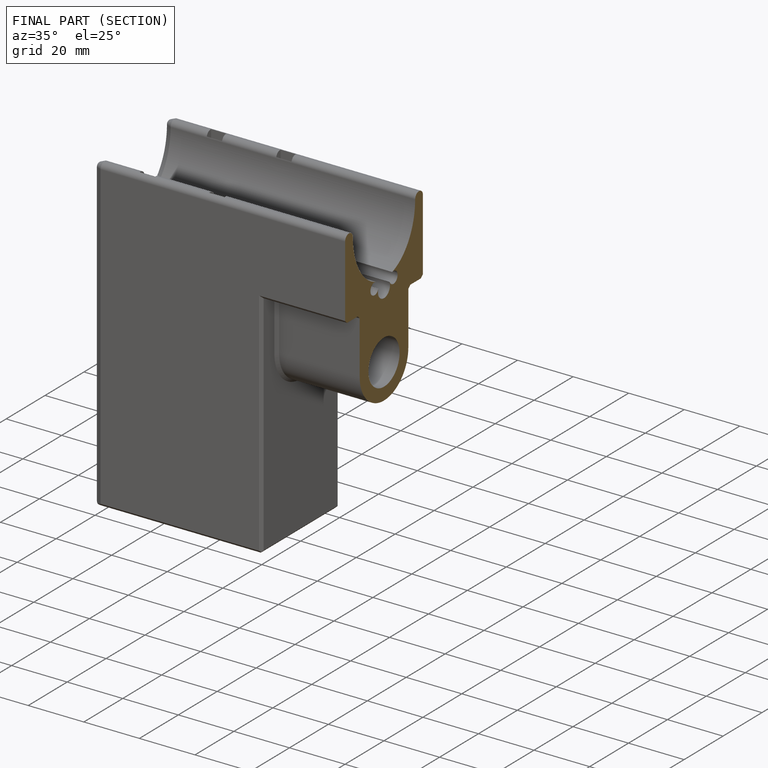
[diagram: finished part — half-section view (interior)]
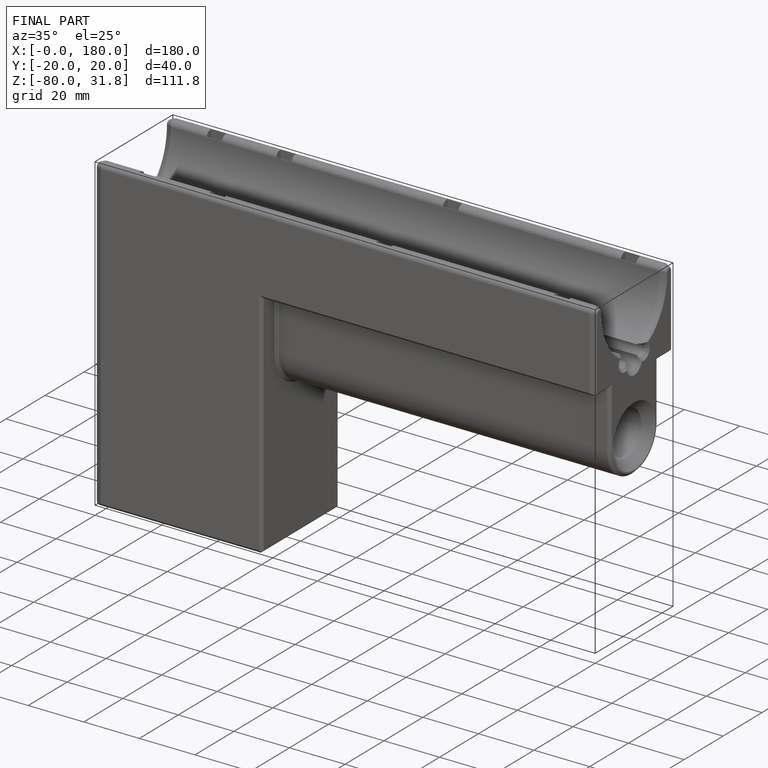
[diagram: finished part — iso view with bounding-box wireframe]
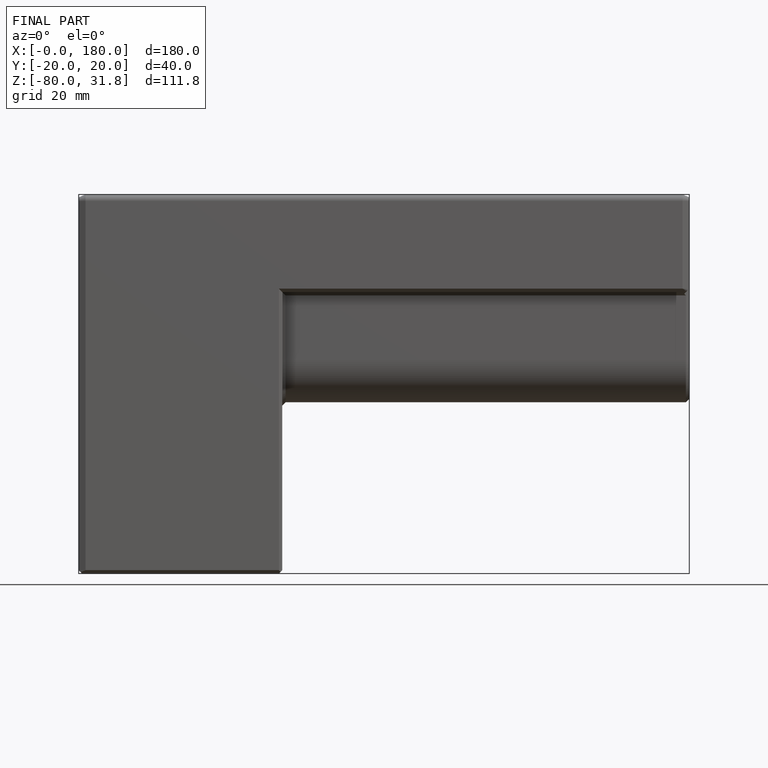
[diagram: finished part — front view with bounding-box wireframe]
